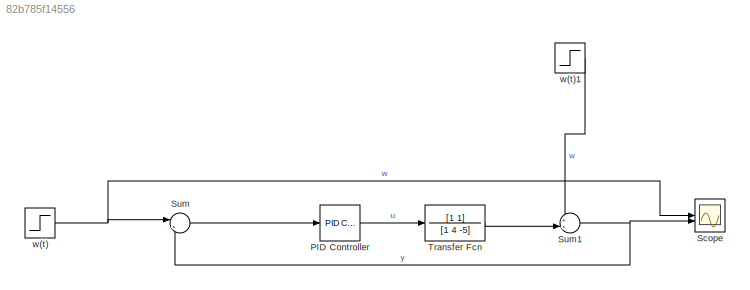
MODEL slx_82b785f14556
KIND model
CONFIG AbsTol = auto
CONFIG EnableMultiTasking = off
CONFIG FixedStep = auto
CONFIG MaxStep = auto
CONFIG MinStep = auto
CONFIG RelTol = 1e-3
CONFIG SampleTimeConstraint = Unconstrained
CONFIG SolverName = VariableStepAuto
CONFIG StartTime = 0.0
CONFIG StopTime = 100
BLOCK [Reference] PID Controller  REF=slpidlib/PID Controller
  LibrarySourceBlock = simulink/Continuous/PID Controller
  SourceBlock = slpidlib/PID Controller
  SourceType = PID 1dof
BLOCK [Scope] Scope
  Floating = off
  NumInputPorts = 2
  ScopeSpecificationString = Simulink.scopes.TimeScopeBlockCfg('CurrentConfiguration', extmgr.ConfigurationSet(extmgr.Configuration('Core','General UI',true,'DisplayFullSourceName',true),extmgr.Configuration('Core','Source UI',true),extmgr.Configuration('Sources','WiredSimulink',true),extmgr.Configuration('Visuals','Time Domain',true,'SerializedDisplays',{struct('MinYLimReal','-0.33332','MaxYLimReal','36.66676','YLabelReal','...<+1526ch>
BLOCK [Sum] Sum
  Inputs = |+-
BLOCK [Sum] Sum1
  Inputs = ++|
BLOCK [TransferFcn] Transfer Fcn
  Denominator = [1 4 -5]
  Numerator = [1 1]
BLOCK [Step] w(t)
  After = 10
  SampleTime = 0
  Time = 10
BLOCK [Step] w(t)1
  After = 0
  SampleTime = 0
  Time = 0
LINE PID Controller:1 -> Transfer Fcn:1
NET Sum1:1 -> Scope:2, Sum:2
LINE Sum:1 -> PID Controller:1
LINE Transfer Fcn:1 -> Sum1:2
LINE w(t)1:1 -> Sum1:1
NET w(t):1 -> Scope:1, Sum:1
note: NET lines group one-source signal fan-out (src -> all destinations, sorted); 1:1 wires keep LINE
